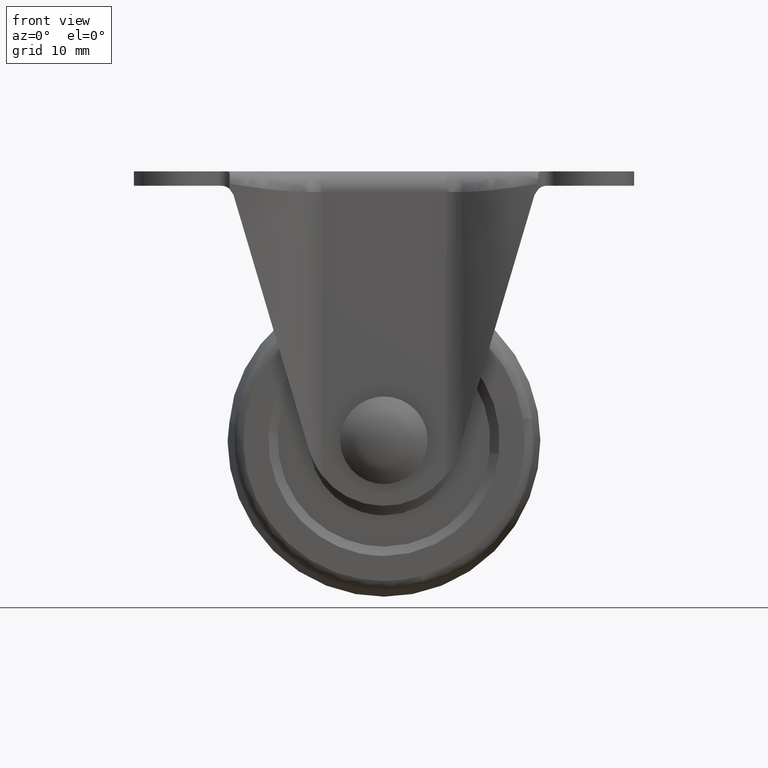
[diagram: clean part render]
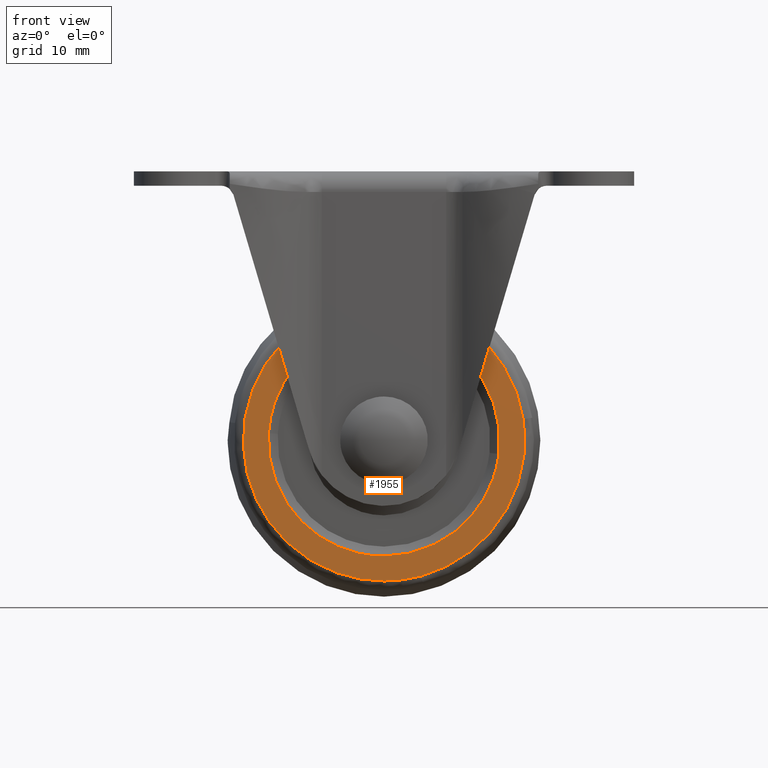
[diagram: same view with one face highlighted and labeled with its STEP entity id]
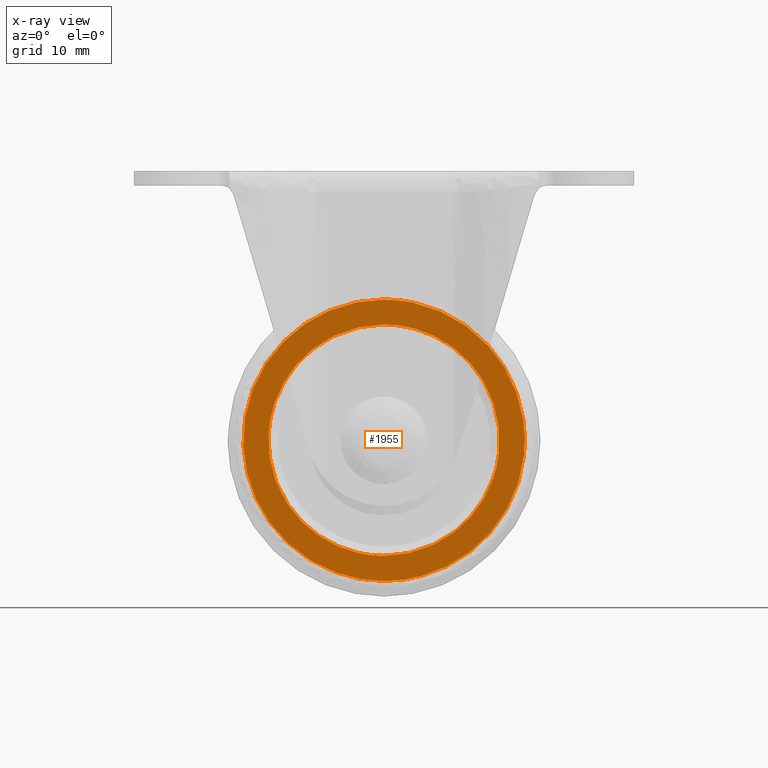
[diagram: x-ray of the same camera — body ghosted, the highlighted face saturated]
A machine part, front view. The second image highlights one B-rep face of the part: STEP entity #1955.
The next image is the same camera in x-ray: the body ghosted, the highlighted face saturated — about 0% of this face is hidden behind the body in this view.
In plain terms, the highlighted face is a freeform B-spline surface patch.
Its self-contained STEP definition (entity closure, byte-faithful):
#66=CARTESIAN_POINT('',(18.370676237731718,-14.000000000019440,-45.183633341363731));
#67=VERTEX_POINT('',#66);
#68=CARTESIAN_POINT('',(0.0,-14.0,-24.500000000000000));
#69=VERTEX_POINT('',#68);
#70=CARTESIAN_POINT('',(18.370676237731711,-14.000000000019442,-45.183633341363731));
#71=CARTESIAN_POINT('',(18.500000000000000,-14.0,-44.095646213772817));
#72=CARTESIAN_POINT('',(18.500000000000000,-14.0,-43.0));
#73=CARTESIAN_POINT('',(18.500000000000000,-13.999999999999998,-24.500000000000004));
#74=CARTESIAN_POINT('',(0.0,-14.0,-24.500000000000000));
#82=(BOUNDED_CURVE()B_SPLINE_CURVE(2,(#70,#71,#72,#73,#74),.UNSPECIFIED.,.F.,.U.)B_SPLINE_CURVE_WITH_KNOTS((3,2,3),(0.229562473511776,0.250000000000000,0.500000000000000),.UNSPECIFIED.)CURVE()GEOMETRIC_REPRESENTATION_ITEM()RATIONAL_B_SPLINE_CURVE((0.956026754180303,0.976055948329115,1.0,0.707106781186548,1.0))REPRESENTATION_ITEM(''));
#83=EDGE_CURVE('',#67,#69,#82,.T.);
#85=CARTESIAN_POINT('',(-18.465493770822441,-14.000000000020790,-41.870602018388453));
#86=VERTEX_POINT('',#85);
#87=CARTESIAN_POINT('',(0.0,-14.0,-24.500000000000000));
#88=CARTESIAN_POINT('',(-17.403062237349797,-14.000000000000002,-24.499999999999996));
#89=CARTESIAN_POINT('',(-18.465493770822437,-14.000000000020787,-41.870602018388453));
#97=(BOUNDED_CURVE()B_SPLINE_CURVE(2,(#87,#88,#89),.UNSPECIFIED.,.F.,.U.)B_SPLINE_CURVE_WITH_KNOTS((3,3),(0.500000000000000,0.739332962237955),.UNSPECIFIED.)CURVE()GEOMETRIC_REPRESENTATION_ITEM()RATIONAL_B_SPLINE_CURVE((1.0,0.719603993287868,0.976072041664600))REPRESENTATION_ITEM(''));
#98=EDGE_CURVE('',#69,#86,#97,.T.);
#165=CARTESIAN_POINT('',(0.0,-14.0,-61.500000000000000));
#166=VERTEX_POINT('',#165);
#167=CARTESIAN_POINT('',(0.0,-14.0,-61.500000000000000));
#168=CARTESIAN_POINT('',(16.431228729721536,-13.999999999999995,-61.500000000000000));
#169=CARTESIAN_POINT('',(18.370676237731711,-14.000000000019442,-45.183633341363731));
#177=(BOUNDED_CURVE()B_SPLINE_CURVE(2,(#167,#168,#169),.UNSPECIFIED.,.F.,.U.)B_SPLINE_CURVE_WITH_KNOTS((3,3),(0.0,0.229562473511776),.UNSPECIFIED.)CURVE()GEOMETRIC_REPRESENTATION_ITEM()RATIONAL_B_SPLINE_CURVE((1.0,0.731050832857432,0.956026754180303))REPRESENTATION_ITEM(''));
#178=EDGE_CURVE('',#166,#67,#177,.T.);
#212=CARTESIAN_POINT('',(-18.465493770822437,-14.000000000020794,-41.870602018388453));
#213=CARTESIAN_POINT('',(-18.500000000000007,-14.000000000000002,-42.434773878760716));
#214=CARTESIAN_POINT('',(-18.500000000000000,-14.0,-43.0));
#215=CARTESIAN_POINT('',(-18.500000000000000,-13.999999999999998,-61.500000000000007));
#216=CARTESIAN_POINT('',(0.0,-14.0,-61.500000000000000));
#224=(BOUNDED_CURVE()B_SPLINE_CURVE(2,(#212,#213,#214,#215,#216),.UNSPECIFIED.,.F.,.U.)B_SPLINE_CURVE_WITH_KNOTS((3,2,3),(0.739332962237954,0.750000000000000,1.0),.UNSPECIFIED.)CURVE()GEOMETRIC_REPRESENTATION_ITEM()RATIONAL_B_SPLINE_CURVE((0.976072041664599,0.987502787898679,1.0,0.707106781186548,1.0))REPRESENTATION_ITEM(''));
#225=EDGE_CURVE('',#86,#166,#224,.T.);
#1363=CARTESIAN_POINT('',(5.925506779941806,-14.0,-64.704050016451106));
#1364=VERTEX_POINT('',#1363);
#1365=CARTESIAN_POINT('',(22.243069563850629,-14.0,-39.620166558186568));
#1366=VERTEX_POINT('',#1365);
#1367=CARTESIAN_POINT('',(5.925506779941805,-14.000000000000004,-64.704050016451106));
#1368=CARTESIAN_POINT('',(22.498386999999994,-14.0,-60.179423778912309));
#1369=CARTESIAN_POINT('',(22.498387000000001,-14.0,-43.0));
#1370=CARTESIAN_POINT('',(22.498387000000001,-13.999999999999995,-41.300439757507590));
#1371=CARTESIAN_POINT('',(22.243069563850622,-14.000000000000002,-39.620166558186554));
#1379=(BOUNDED_CURVE()B_SPLINE_CURVE(2,(#1367,#1368,#1369,#1370,#1371),.UNSPECIFIED.,.F.,.U.)B_SPLINE_CURVE_WITH_KNOTS((3,2,3),(0.044901926751542,0.250000000000000,0.275897584624787),.UNSPECIFIED.)CURVE()GEOMETRIC_REPRESENTATION_ITEM()RATIONAL_B_SPLINE_CURVE((0.913685083900998,0.759712660615288,1.0,0.969659092319009,0.945604234432109))REPRESENTATION_ITEM(''));
#1380=EDGE_CURVE('',#1364,#1366,#1379,.T.);
#1465=CARTESIAN_POINT('',(0.0,-14.0,-65.498386999999994));
#1466=VERTEX_POINT('',#1465);
#1467=CARTESIAN_POINT('',(0.0,-14.0,-65.498386999999994));
#1468=CARTESIAN_POINT('',(3.015995354521878,-14.000000000000004,-65.498386999999980));
#1469=CARTESIAN_POINT('',(5.925506779941805,-14.000000000000004,-64.704050016451106));
#1477=(BOUNDED_CURVE()B_SPLINE_CURVE(2,(#1467,#1468,#1469),.UNSPECIFIED.,.F.,.U.)B_SPLINE_CURVE_WITH_KNOTS((3,3),(0.0,0.044901926751542),.UNSPECIFIED.)CURVE()GEOMETRIC_REPRESENTATION_ITEM()RATIONAL_B_SPLINE_CURVE((1.0,0.947394120571260,0.913685083900998))REPRESENTATION_ITEM(''));
#1478=EDGE_CURVE('',#1466,#1364,#1477,.T.);
#1480=CARTESIAN_POINT('',(0.0,-14.0,-20.501612999999999));
#1481=VERTEX_POINT('',#1480);
#1482=CARTESIAN_POINT('',(0.0,-14.0,-20.501612999999999));
#1483=CARTESIAN_POINT('',(-22.498387000000005,-13.999999999999998,-20.501613000000003));
#1484=CARTESIAN_POINT('',(-22.498387000000001,-14.0,-43.0));
#1485=CARTESIAN_POINT('',(-22.498387000000005,-13.999999999999998,-65.498386999999994));
#1486=CARTESIAN_POINT('',(0.0,-14.0,-65.498386999999994));
#1494=(BOUNDED_CURVE()B_SPLINE_CURVE(2,(#1482,#1483,#1484,#1485,#1486),.UNSPECIFIED.,.F.,.U.)B_SPLINE_CURVE_WITH_KNOTS((3,2,3),(0.500000000000000,0.750000000000000,1.0),.UNSPECIFIED.)CURVE()GEOMETRIC_REPRESENTATION_ITEM()RATIONAL_B_SPLINE_CURVE((1.0,0.707106781186548,1.0,0.707106781186548,1.0))REPRESENTATION_ITEM(''));
#1495=EDGE_CURVE('',#1481,#1466,#1494,.T.);
#1497=CARTESIAN_POINT('',(22.243069563850625,-13.999999999999998,-39.620166558186568));
#1498=CARTESIAN_POINT('',(19.338006188997834,-14.0,-20.501612999999995));
#1499=CARTESIAN_POINT('',(0.0,-14.0,-20.501612999999999));
#1507=(BOUNDED_CURVE()B_SPLINE_CURVE(2,(#1497,#1498,#1499),.UNSPECIFIED.,.F.,.U.)B_SPLINE_CURVE_WITH_KNOTS((3,3),(0.275897584624787,0.500000000000000),.UNSPECIFIED.)CURVE()GEOMETRIC_REPRESENTATION_ITEM()RATIONAL_B_SPLINE_CURVE((0.945604234432109,0.737447688867539,1.0))REPRESENTATION_ITEM(''));
#1508=EDGE_CURVE('',#1366,#1481,#1507,.T.);
#1938=CARTESIAN_POINT('',(-24.745959471510940,-14.0,-18.254024487549920));
#1939=CARTESIAN_POINT('',(-24.745959471510940,-14.0,-67.745980340080195));
#1940=CARTESIAN_POINT('',(24.745643159136449,-14.0,-18.254024487549920));
#1941=CARTESIAN_POINT('',(24.745643159136449,-14.0,-67.745980340080195));
#1942=B_SPLINE_SURFACE_WITH_KNOTS('',1,1,((#1938,#1940),(#1939,#1941)),.UNSPECIFIED.,.F.,.F.,.U.,(2,2),(2,2),(0.0,49.491955852530282),(0.0,49.491602630647392),.UNSPECIFIED.);
#1943=ORIENTED_EDGE('',*,*,#1478,.T.);
#1944=ORIENTED_EDGE('',*,*,#1380,.T.);
#1945=ORIENTED_EDGE('',*,*,#1508,.T.);
#1946=ORIENTED_EDGE('',*,*,#1495,.T.);
#1947=EDGE_LOOP('',(#1943,#1944,#1945,#1946));
#1948=FACE_OUTER_BOUND('',#1947,.T.);
#1949=ORIENTED_EDGE('',*,*,#98,.F.);
#1950=ORIENTED_EDGE('',*,*,#83,.F.);
#1951=ORIENTED_EDGE('',*,*,#178,.F.);
#1952=ORIENTED_EDGE('',*,*,#225,.F.);
#1953=EDGE_LOOP('',(#1949,#1950,#1951,#1952));
#1954=FACE_BOUND('',#1953,.T.);
#1955=ADVANCED_FACE('',(#1948,#1954),#1942,.T.);